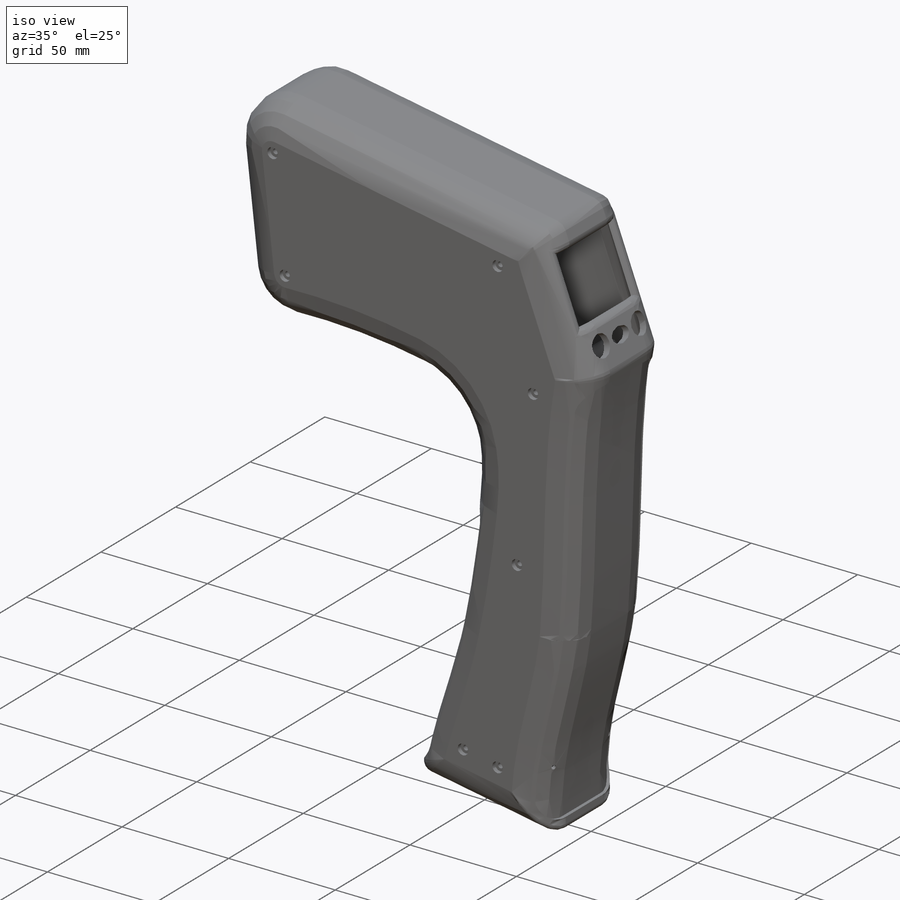
[diagram: iso view]
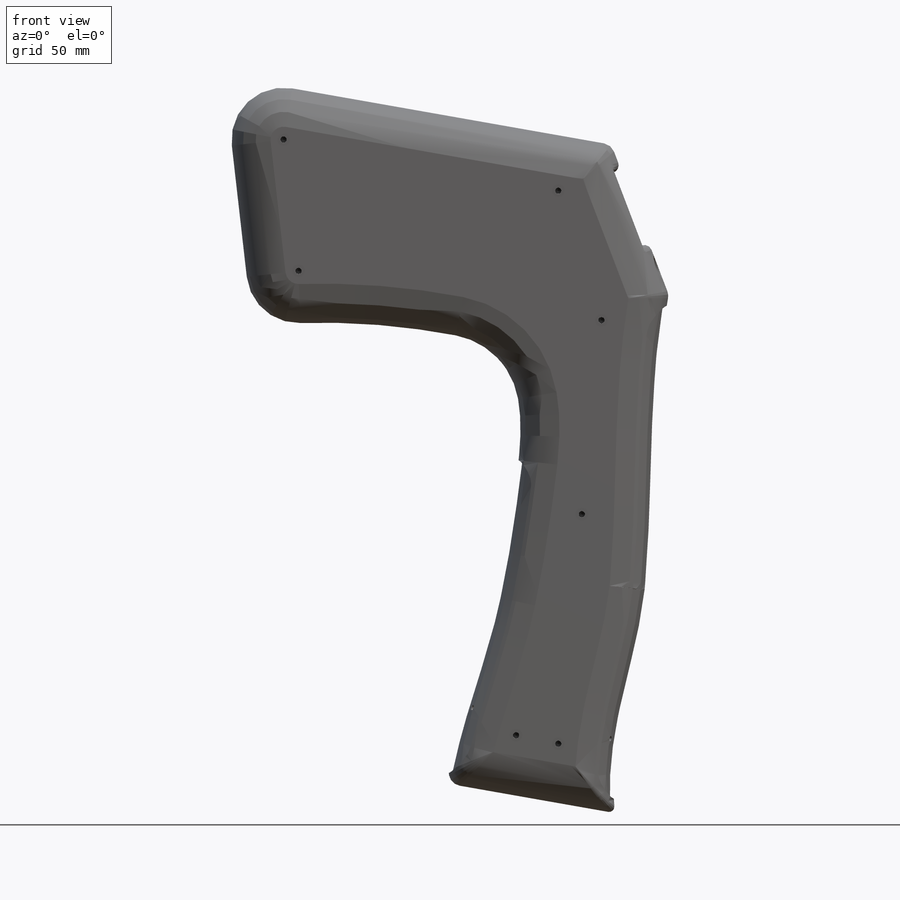
[diagram: front view]
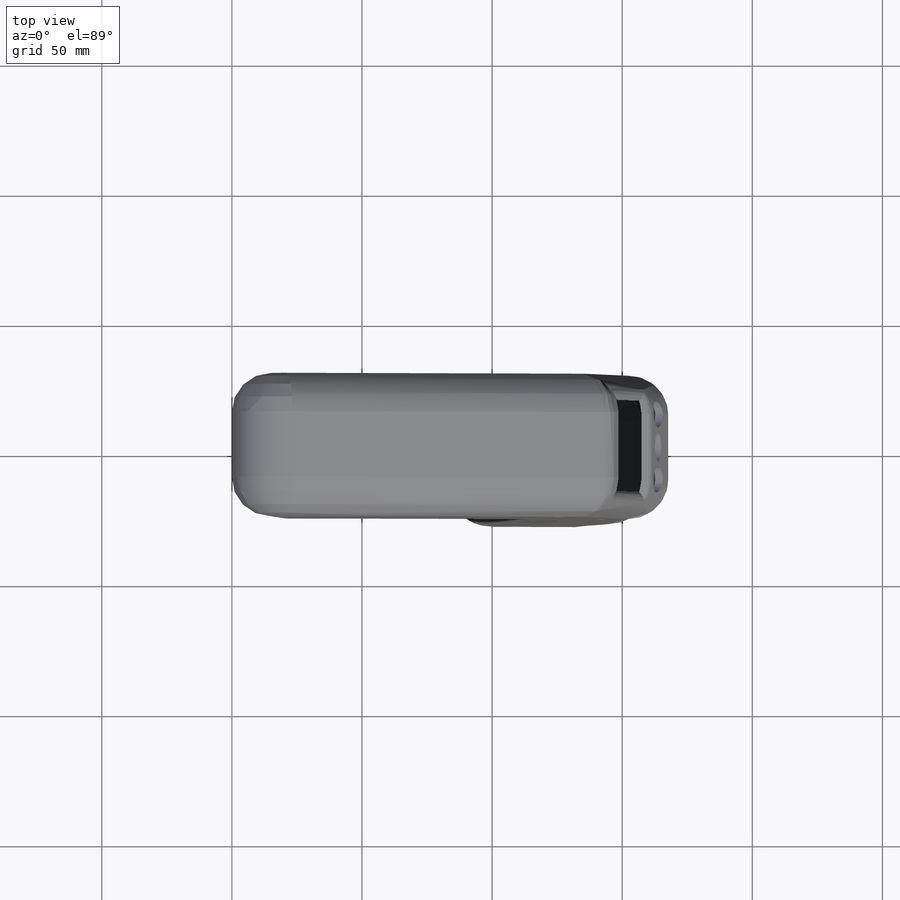
[diagram: top view]
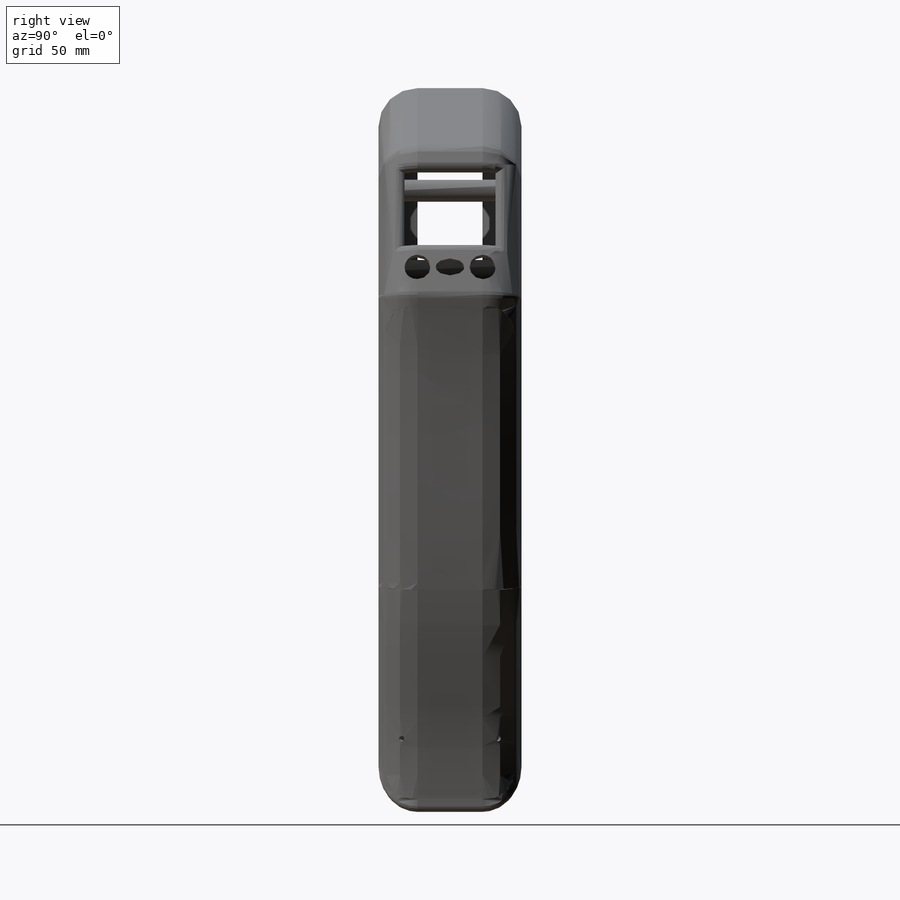
[diagram: right view]
SOLIDWORKS PART (.sldprt)
format: sldprt  version: not decoded by parser v0  size: 873,472 bytes
history: native  units: mm
features: sketch x12, plane x9, cut_extrude x4, mirror x3, fillet x2, hole x2, material x1, extrude x1, shell x1, delete_body x1, sweep x1 (+9 scaffold rows collapsed)
feature tree (46):
  scaffold x9  (default folders/planes/origin — collapsed)
  material  "Material <nicht festgelegt>"
  plane  "Vorne"
  plane  "Oben"
  plane  "Rechts"
  sketch  "Skizze1"  dims[c1.D1=0.5mm c1.D2=0.5mm c1.D3=0.5mm c1.D4=0.5mm c1.D5=0.5mm c2.D4=10.0mm c2.D1=2.0mm c2.D7=20.0mm c2.D8=5.0mm c2.D9=5.0mm c2.D3=5.0mm c2.D11=5.0mm c2.D2=5.0mm c2.D10=5.0mm c2.D6=20.0mm c3.D8=30.0mm c3.D1=60.0mm c3.D2=~68.171842mm c4.D2=10.0deg c4.D3=250.0mm c4.D1=60.0mm c5.D3=~199.488881mm c5.D5=150.0mm c5.D6=60.0mm c5.D7=75.0mm c5.D10=198.0mm c5.D2=65.0mm c5.D11=50.0mm c5.D12=65.0mm]
  extrude  "Korpus"  Depth=55mm
  fillet  "Verrundung Korpus"  Radius=15mm
  sketch  "Skizze8"
  hole  "Stirnsenkung für M2 Flachkopfschraube mit Schlitz1"  Diameter=2.4mm Depth=50mm
  sketch  "Skizze10"
  sketch  "Skizze11"  dims[hole-wizard template sketch: 28 standard entries collapsed; hole parameters kept: c8.Bohrerdurchmesser=2.4mm c8.Bohrungstiefe=50.0mm c8.Senkdurchmesser2=5.0mm c8.Senktiefe2=2.0mm c8.D5=~14.816244mm c8.Spitzenwinkel=118.0deg]
  shell  "Hohlkörper - Wandstärke 3mm"  Thickness=3mm
  sketch  "Skizze2"  dims[D6=10.0mm D7=10.0mm D1=35.0mm D2=30.0mm D3=5.0mm D4=5.0mm D5=20.0mm D8=5.0mm D9=5.0mm D10=12.5mm D11=12.5mm D12=10.0mm D13=10.0mm D14=10.0mm D15=11.0mm D16=7.0mm D17=17.5mm D18=10.0mm]
  cut_extrude  "Display + Tasten"  [1 undecoded]
  fillet  "Display"  Radius=3mm
  plane  "Hilfsebene Abzug"
  sketch  "Skizze13"  dims[D1=35.0mm D2=~20.960623mm]
  cut_extrude  "Schnitt-Linear austragen3"  Depth=30mm
  plane  "Hilfsebene Griff vorne"  Offset=70mm
  sketch  "Skizze14"  dims[D5=10.0mm D1=120.0mm D2=1.0mm D3=12.0mm D4=12.0mm]
  cut_extrude  "Aussparung Weichkompo Griff vorne"  Depth=1.5mm
  plane  "Hilfsebene hinten"  Offset=100mm
  sketch  "Skizze16"  dims[D5=10.0mm D1=3.0mm D2=3.0mm D3=3.0mm D4=3.0mm]
  cut_extrude  "Aussparung Weichkompo Griff hinten"  Depth=1.5mm
  plane  "Hilfsebene vorne gesamt"  Offset=85mm
  hole  "Ø0.15 (0.15) Durchmesser Bohrung5"  Diameter=2mm Depth=5mm
  sketch  "3D-Skizze2"
  sketch  "Skizze22"  dims[hole-wizard template sketch: 49 standard entries collapsed; hole parameters kept: c15.Spitzenwinkel=118.0deg]
  mirror  "Kanal innen/außen Weichkompo"
  mirror  "3D-Skizze3"
  plane  "Ebene1"
  sketch  "Skizze23"
  mirror  "3D-Skizze4"
  delete_body  "Körper-Löschen1"
  plane  "Ebene2"
  sketch  "Skizze25"  dims[D1=2.0mm]
  sweep  "Schnitt-Austragung1"
decode coverage: 17 of 27 modeling features carry decoded parameters
note: ~ marks probable driven/reference dimensions
note: 1 parameter value undecoded
note: suppression state not decoded; provenance and decode notes live in map.json
